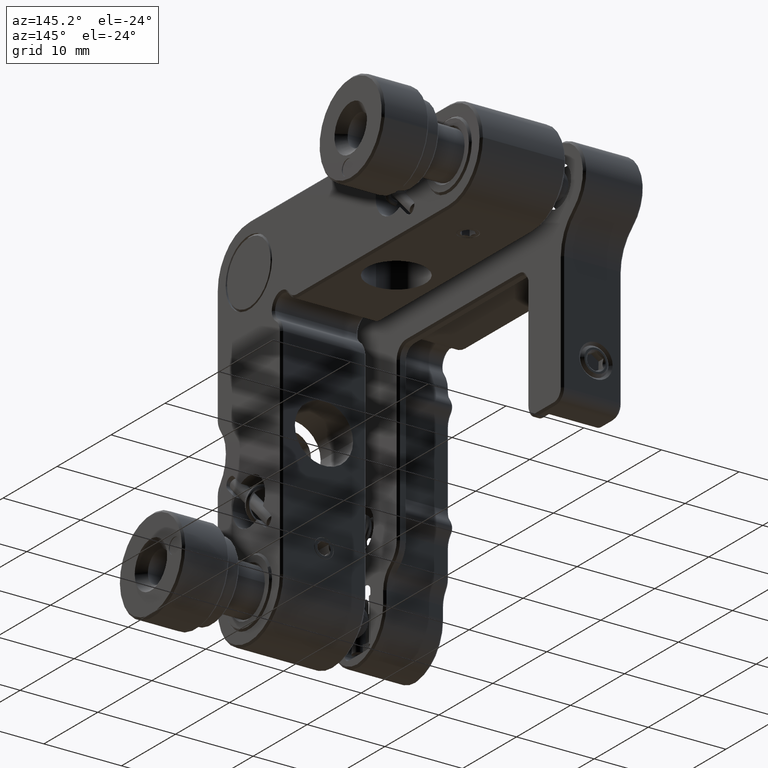
[diagram: clean part render]
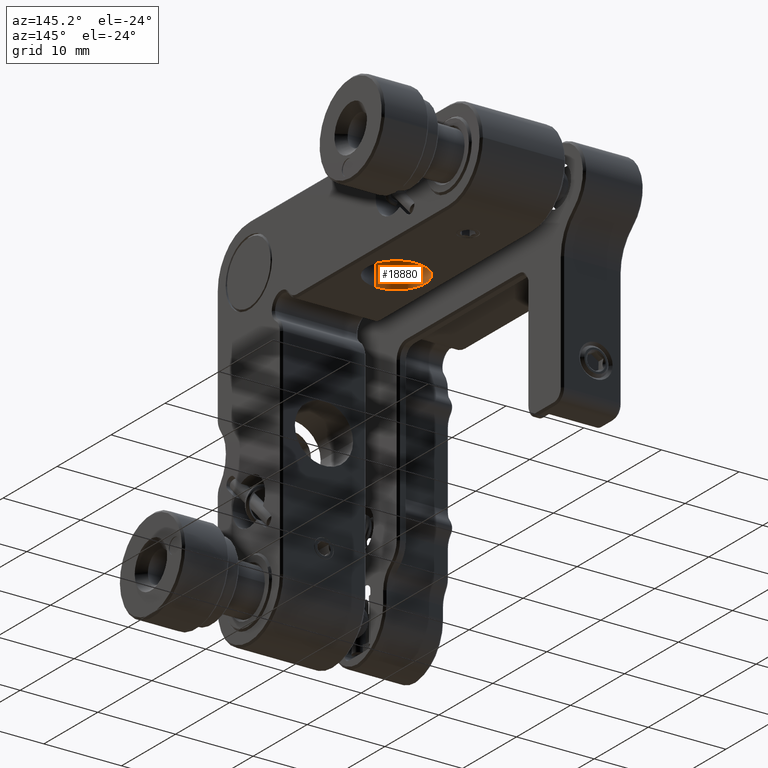
[diagram: same view with one face highlighted and labeled with its STEP entity id]
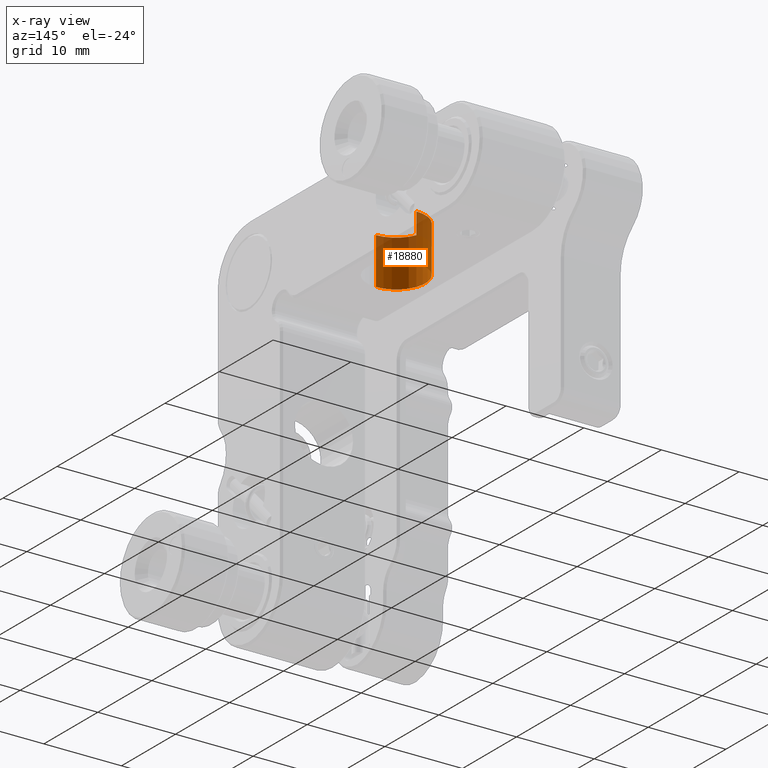
[diagram: x-ray of the same camera — body ghosted, the highlighted face saturated]
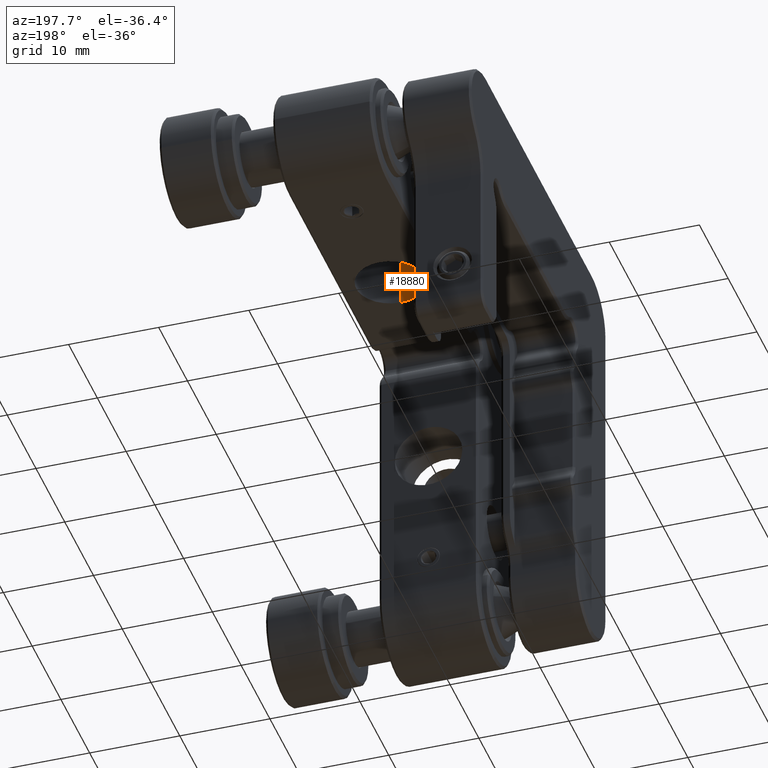
[diagram: same view with one face highlighted and labeled with its STEP entity id]
A machine part, auxiliary view. The second image highlights one B-rep face of the part: STEP entity #18880.
The next image is the same camera in x-ray: the body ghosted, the highlighted face saturated — about 42% of this face is hidden behind the body in this view.
A second angle (auxiliary view) of the same face is appended — the face is thin or edge-on in the first view.
In plain terms, the highlighted cylindrical surface (edge-blend (fillet) strip) has radius 3.75 mm, axis along (0, 0, -1).
Its self-contained STEP definition (entity closure, byte-faithful):
#788 = CARTESIAN_POINT ( 'NONE',  ( -3.960546941220728915E-15, -2.850000000000009859, 18.49999999999991473 ) ) ;
#4535 = CARTESIAN_POINT ( 'NONE',  ( 7.237552267663152431E-15, 4.649999999999987033, 18.49999999999991473 ) ) ;
#7362 = DIRECTION ( 'NONE',  ( 1.554312234475218959E-15, 1.000000000000000000, 0.0000000000000000000 ) ) ;
#9149 = DIRECTION ( 'NONE',  ( 4.758708757064139139E-31, 2.220446049250328858E-16, -1.000000000000000000 ) ) ;
#11005 = EDGE_LOOP ( 'NONE', ( #49862, #39052, #32997, #26861 ) ) ;
#11669 = DIRECTION ( 'NONE',  ( 1.554312234475219354E-15, 1.000000000000000000, 0.0000000000000000000 ) ) ;
#12513 = DIRECTION ( 'NONE',  ( 1.554312234475218959E-15, 1.000000000000000000, 0.0000000000000000000 ) ) ;
#14678 = CARTESIAN_POINT ( 'NONE',  ( -3.960546941220725760E-15, -2.850000000000008971, 12.49999999999996447 ) ) ;
#18880 = ADVANCED_FACE ( 'NONE', ( #58359 ), #63768, .F. ) ;
#19198 = CARTESIAN_POINT ( 'NONE',  ( 7.237552267663155587E-15, 4.649999999999987921, 12.49999999999996447 ) ) ;
#20549 = VERTEX_POINT ( 'NONE', #788 ) ;
#26151 = VERTEX_POINT ( 'NONE', #39606 ) ;
#26861 = ORIENTED_EDGE ( 'NONE', *, *, #48573, .F. ) ;
#28003 = VERTEX_POINT ( 'NONE', #61848 ) ;
#29594 = AXIS2_PLACEMENT_3D ( 'NONE', #47401, #42380, #12513 ) ;
#31261 = EDGE_CURVE ( 'NONE', #20549, #26151, #51009, .T. ) ;
#32997 = ORIENTED_EDGE ( 'NONE', *, *, #37271, .T. ) ;
#37271 = EDGE_CURVE ( 'NONE', #26151, #28003, #54053, .T. ) ;
#37524 = VERTEX_POINT ( 'NONE', #4535 ) ;
#38778 = LINE ( 'NONE', #19198, #59071 ) ;
#39052 = ORIENTED_EDGE ( 'NONE', *, *, #31261, .T. ) ;
#39606 = CARTESIAN_POINT ( 'NONE',  ( -3.960546941220728915E-15, -2.850000000000009859, 12.49999999999996447 ) ) ;
#41792 = CIRCLE ( 'NONE', #43243, 3.749999999999998224 ) ;
#42380 = DIRECTION ( 'NONE',  ( 4.758708757064139139E-31, 2.220446049250328858E-16, -1.000000000000000000 ) ) ;
#43243 = AXIS2_PLACEMENT_3D ( 'NONE', #46549, #61360, #11669 ) ;
#46549 = CARTESIAN_POINT ( 'NONE',  ( 1.408881388381083552E-15, 0.8999999999999885869, 18.49999999999991473 ) ) ;
#47401 = CARTESIAN_POINT ( 'NONE',  ( 1.408881388381087497E-15, 0.8999999999999899192, 12.49999999999996447 ) ) ;
#48573 = EDGE_CURVE ( 'NONE', #37524, #28003, #38778, .T. ) ;
#48688 = VECTOR ( 'NONE', #59386, 1000.000000000000000 ) ;
#49054 = CARTESIAN_POINT ( 'NONE',  ( 1.408881388381087497E-15, 0.8999999999999899192, 12.49999999999996447 ) ) ;
#49862 = ORIENTED_EDGE ( 'NONE', *, *, #50962, .F. ) ;
#50962 = EDGE_CURVE ( 'NONE', #20549, #37524, #41792, .T. ) ;
#51009 = LINE ( 'NONE', #14678, #48688 ) ;
#54053 = CIRCLE ( 'NONE', #56058, 3.749999999999999556 ) ;
#54075 = DIRECTION ( 'NONE',  ( 4.758708757064139139E-31, 2.220446049250328858E-16, -1.000000000000000000 ) ) ;
#56058 = AXIS2_PLACEMENT_3D ( 'NONE', #49054, #54075, #7362 ) ;
#58359 = FACE_OUTER_BOUND ( 'NONE', #11005, .T. ) ;
#59071 = VECTOR ( 'NONE', #9149, 1000.000000000000000 ) ;
#59386 = DIRECTION ( 'NONE',  ( 4.758708757064139139E-31, 2.220446049250328858E-16, -1.000000000000000000 ) ) ;
#61360 = DIRECTION ( 'NONE',  ( 4.758708757064139139E-31, 2.220446049250328858E-16, -1.000000000000000000 ) ) ;
#61848 = CARTESIAN_POINT ( 'NONE',  ( 7.237552267663157165E-15, 4.649999999999988809, 12.49999999999996447 ) ) ;
#63768 = CYLINDRICAL_SURFACE ( 'NONE', #29594, 3.749999999999998668 ) ;